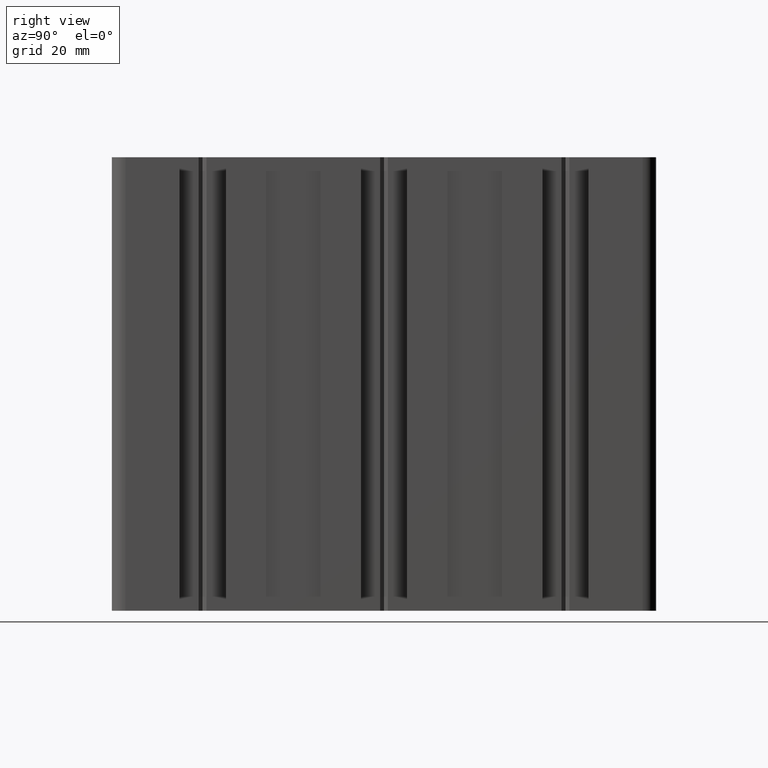
[diagram: clean part render]
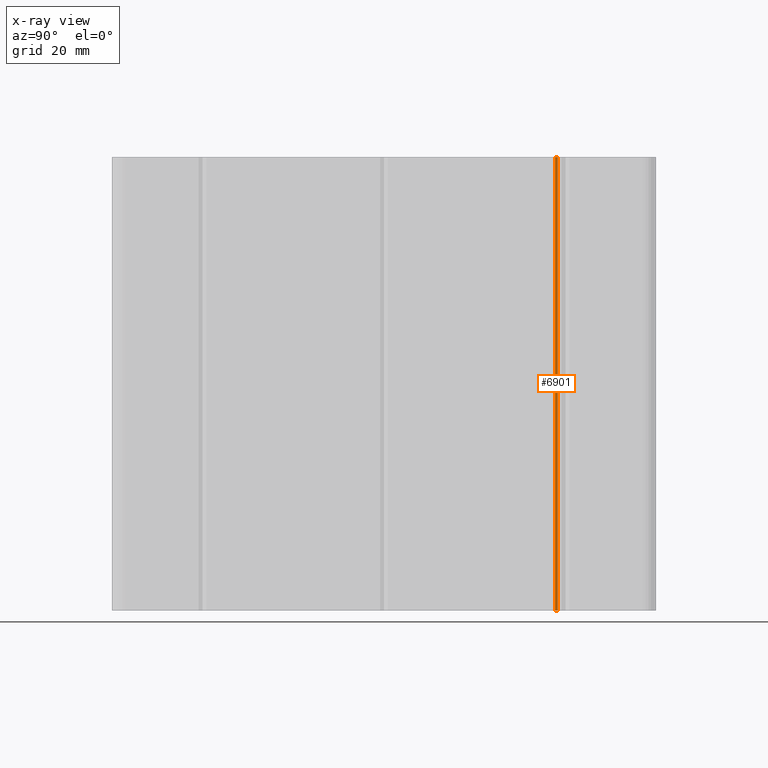
[diagram: x-ray — body ghosted, one internal face saturated and labeled with its STEP entity id]
A machine part, right view, then the same camera in x-ray: the body is ghosted and one INTERNAL B-rep face — a face not visible from any outside direction — is saturated and labeled: STEP entity #6901.
In plain terms, the highlighted cylindrical surface (edge-blend (fillet) strip) has radius 0.5 mm, axis along (-0, -0, -1).
Its self-contained STEP definition (entity closure, byte-faithful):
#1179 = LINE ( 'NONE', #1234, #1233 ) ;
#1182 = DIRECTION ( 'NONE',  ( -0.0000000000000000000, -0.0000000000000000000, -1.000000000000000000 ) ) ;
#1183 = VECTOR ( 'NONE', #1182, 1000.000000000000000 ) ;
#1184 = CARTESIAN_POINT ( 'NONE',  ( -4.704874037984764900, 38.30761697990766400, 100.0000000000000000 ) ) ;
#1185 = LINE ( 'NONE', #1184, #1183 ) ;
#1186 = CARTESIAN_POINT ( 'NONE',  ( -5.175361441783241600, 38.13837867789843700, 100.0000000000000000 ) ) ;
#1190 = FACE_OUTER_BOUND ( 'NONE', #6866, .T. ) ;
#1191 = DIRECTION ( 'NONE',  ( -1.000000000000000000, 0.0000000000000000000, 0.0000000000000000000 ) ) ;
#1196 = DIRECTION ( 'NONE',  ( -0.0000000000000000000, -0.0000000000000000000, -1.000000000000000000 ) ) ;
#1200 = CYLINDRICAL_SURFACE ( 'NONE', #1204, 0.4999999999999970000 ) ;
#1204 = AXIS2_PLACEMENT_3D ( 'NONE', #1186, #1196, #1191 ) ;
#1232 = DIRECTION ( 'NONE',  ( -0.0000000000000000000, -0.0000000000000000000, -1.000000000000000000 ) ) ;
#1233 = VECTOR ( 'NONE', #1232, 1000.000000000000000 ) ;
#1234 = CARTESIAN_POINT ( 'NONE',  ( -4.964052337126734200, 37.68522477215640300, 100.0000000000000000 ) ) ;
#3701 = CARTESIAN_POINT ( 'NONE',  ( -4.964052337126734200, 37.68522477215640300, 100.0000000000000000 ) ) ;
#4162 = VERTEX_POINT ( 'NONE', #8892 ) ;
#4165 = EDGE_CURVE ( 'NONE', #4162, #12542, #8882, .T. ) ;
#5220 = VERTEX_POINT ( 'NONE', #10769 ) ;
#5227 = VERTEX_POINT ( 'NONE', #10768 ) ;
#5284 = EDGE_CURVE ( 'NONE', #5220, #5227, #10840, .T. ) ;
#6866 = EDGE_LOOP ( 'NONE', ( #6918, #6904, #6906, #6887 ) ) ;
#6887 = ORIENTED_EDGE ( 'NONE', *, *, #6905, .T. ) ;
#6899 = EDGE_CURVE ( 'NONE', #4162, #5220, #1185, .T. ) ;
#6901 = ADVANCED_FACE ( 'NONE', ( #1190 ), #1200, .T. ) ;
#6904 = ORIENTED_EDGE ( 'NONE', *, *, #6899, .F. ) ;
#6905 = EDGE_CURVE ( 'NONE', #12542, #5227, #1179, .T. ) ;
#6906 = ORIENTED_EDGE ( 'NONE', *, *, #4165, .T. ) ;
#6918 = ORIENTED_EDGE ( 'NONE', *, *, #5284, .F. ) ;
#8882 = CIRCLE ( 'NONE', #8900, 0.4999999999999970000 ) ;
#8890 = CARTESIAN_POINT ( 'NONE',  ( -5.175361441783241600, 38.13837867789843700, 100.0000000000000000 ) ) ;
#8892 = CARTESIAN_POINT ( 'NONE',  ( -4.704874037984764900, 38.30761697990766400, 100.0000000000000000 ) ) ;
#8900 = AXIS2_PLACEMENT_3D ( 'NONE', #8890, #8940, #8939 ) ;
#8939 = DIRECTION ( 'NONE',  ( 1.000000000000000000, 0.0000000000000000000, 0.0000000000000000000 ) ) ;
#8940 = DIRECTION ( 'NONE',  ( -0.0000000000000000000, -0.0000000000000000000, -1.000000000000000000 ) ) ;
#10768 = CARTESIAN_POINT ( 'NONE',  ( -4.964052337126734200, 37.68522477215640300, 0.0000000000000000000 ) ) ;
#10769 = CARTESIAN_POINT ( 'NONE',  ( -4.704874037984764900, 38.30761697990766400, 0.0000000000000000000 ) ) ;
#10808 = CARTESIAN_POINT ( 'NONE',  ( -5.175361441783241600, 38.13837867789843700, 0.0000000000000000000 ) ) ;
#10834 = DIRECTION ( 'NONE',  ( 1.000000000000000000, 0.0000000000000000000, 0.0000000000000000000 ) ) ;
#10835 = DIRECTION ( 'NONE',  ( -0.0000000000000000000, -0.0000000000000000000, -1.000000000000000000 ) ) ;
#10840 = CIRCLE ( 'NONE', #10844, 0.4999999999999970000 ) ;
#10844 = AXIS2_PLACEMENT_3D ( 'NONE', #10808, #10835, #10834 ) ;
#12542 = VERTEX_POINT ( 'NONE', #3701 ) ;